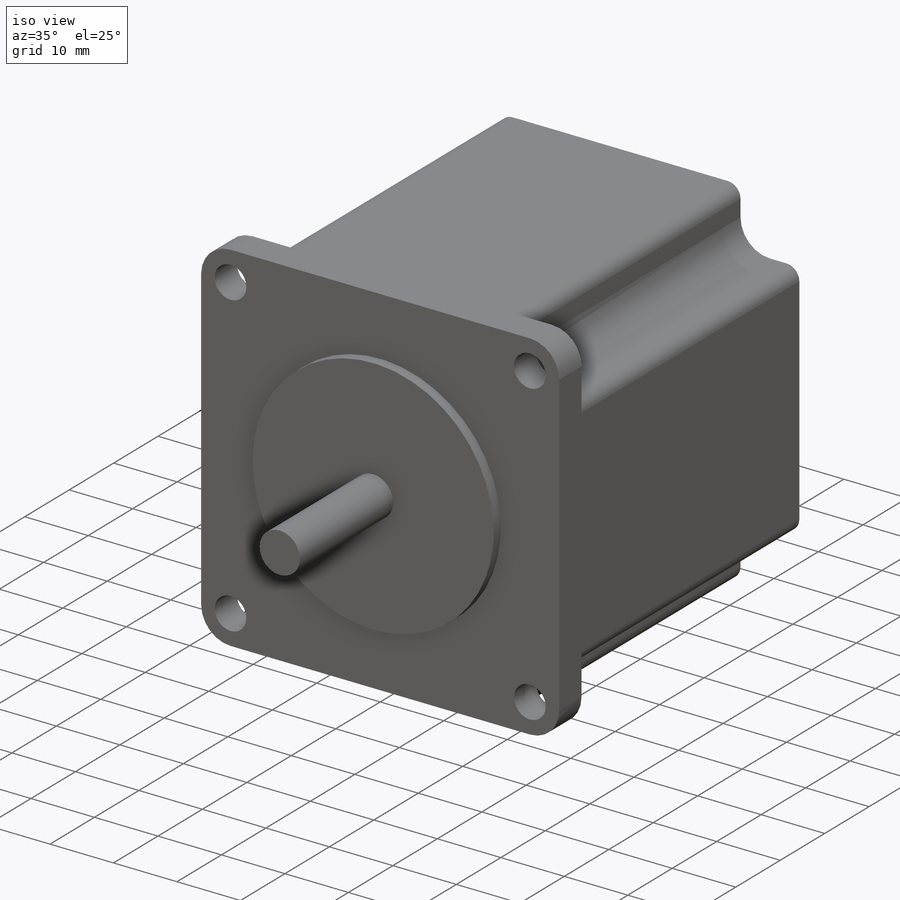
[diagram: iso view]
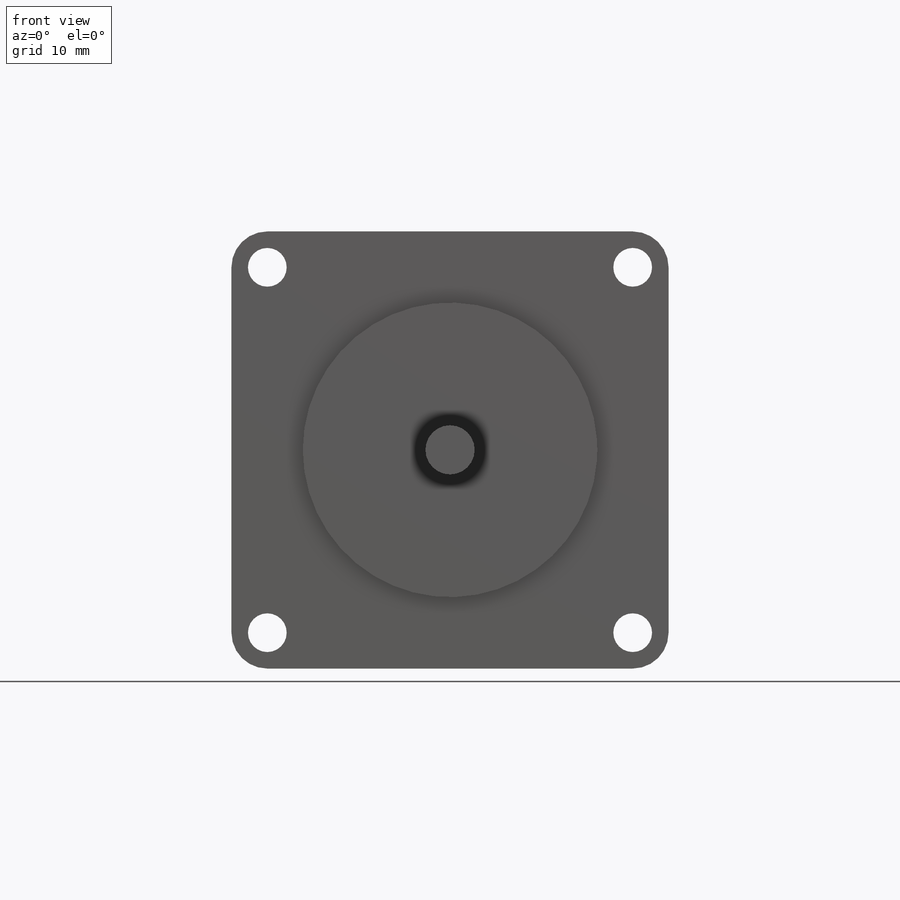
[diagram: front view]
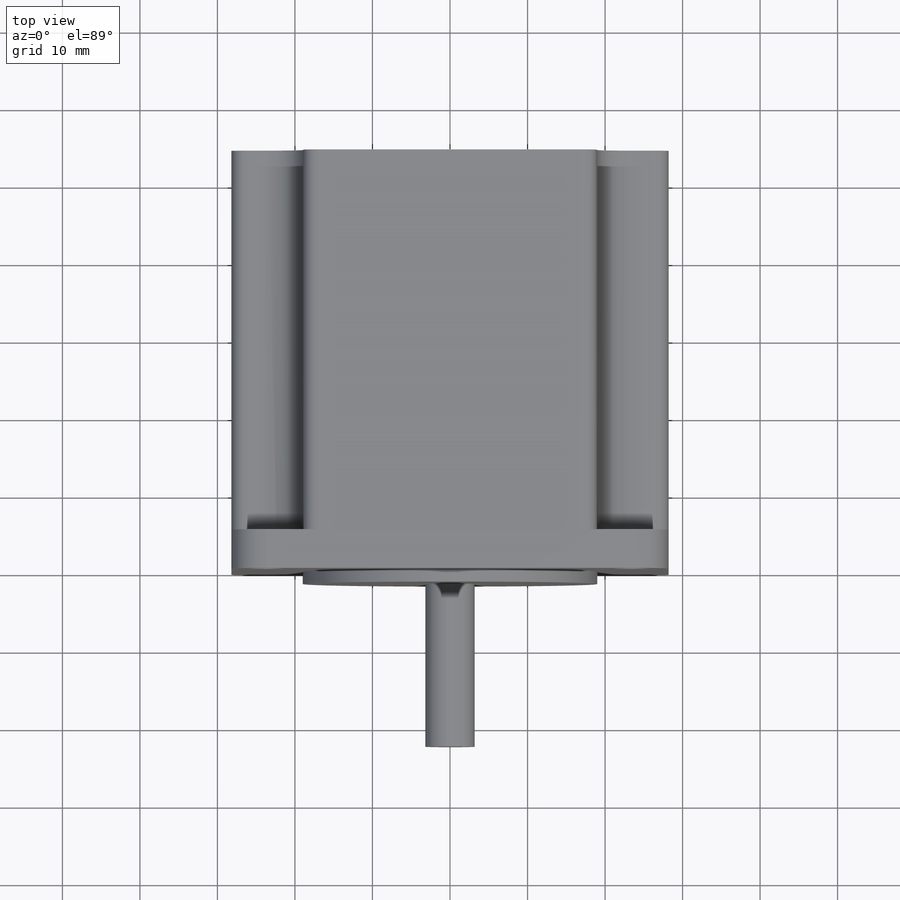
[diagram: top view]
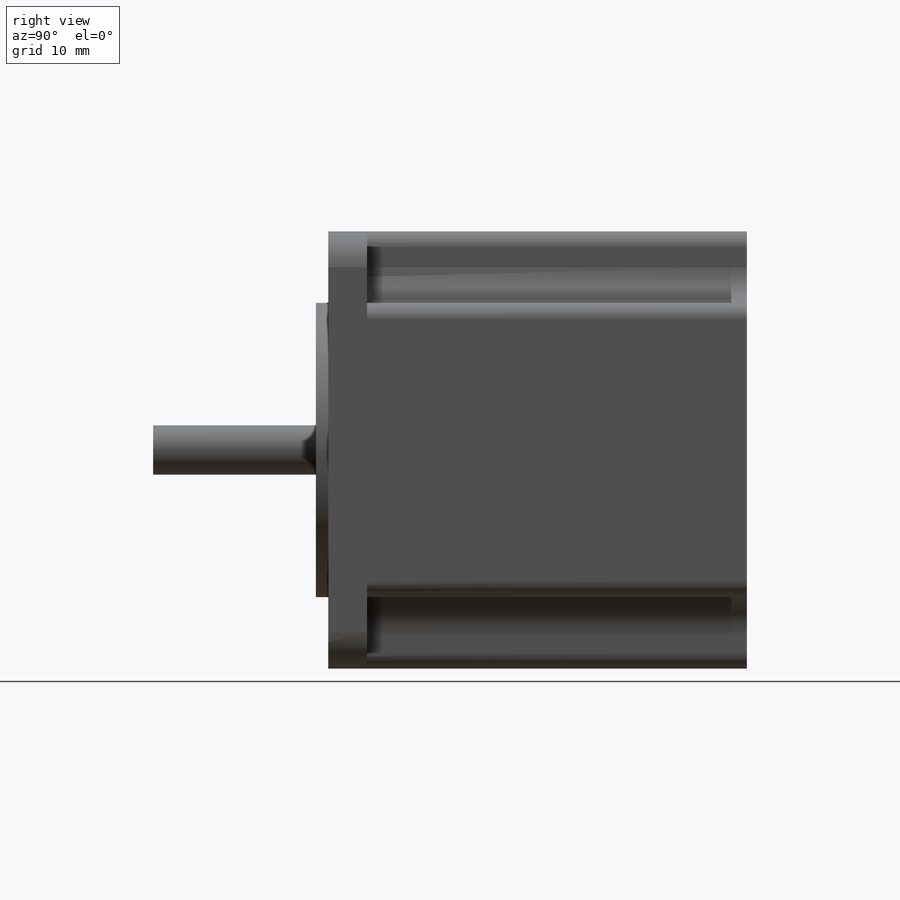
[diagram: right view]
SOLIDWORKS PART (.sldprt)
format: sldprt  version: not decoded by parser v0  size: 262,144 bytes
history: native  units: mm
features: sketch x4, extrude x4, plane x3, material x1 (+9 scaffold rows collapsed)
feature tree (21):
  scaffold x9  (default folders/planes/origin — collapsed)
  material  "Material <not specified>"
  plane  "Ön Düzlem"
  plane  "Üst Düzlem"
  plane  "Sağ Düzlem"
  sketch  "Sketch1"  dims[D3=5.0mm D1=56.4mm D2=47.14mm D4=4.63mm]
  extrude  "Boss-Extrude1"  Depth=5mm
  sketch  "Sketch2"  dims[D1=38.0mm]
  extrude  "Boss-Extrude2"  Depth=1.6mm
  sketch  "Sketch3"  dims[D1=6.35mm]
  extrude  "Boss-Extrude3"  Depth=21mm
  sketch  "Sketch5"  dims[c1.D3=2.0mm c1.D1=2.5mm c1.D2=40.0mm c2.D3=4.63mm]
  extrude  "Boss-Extrude4"  Depth=49mm
decode coverage: 8 of 8 modeling features carry decoded parameters
note: suppression state not decoded; provenance and decode notes live in map.json
